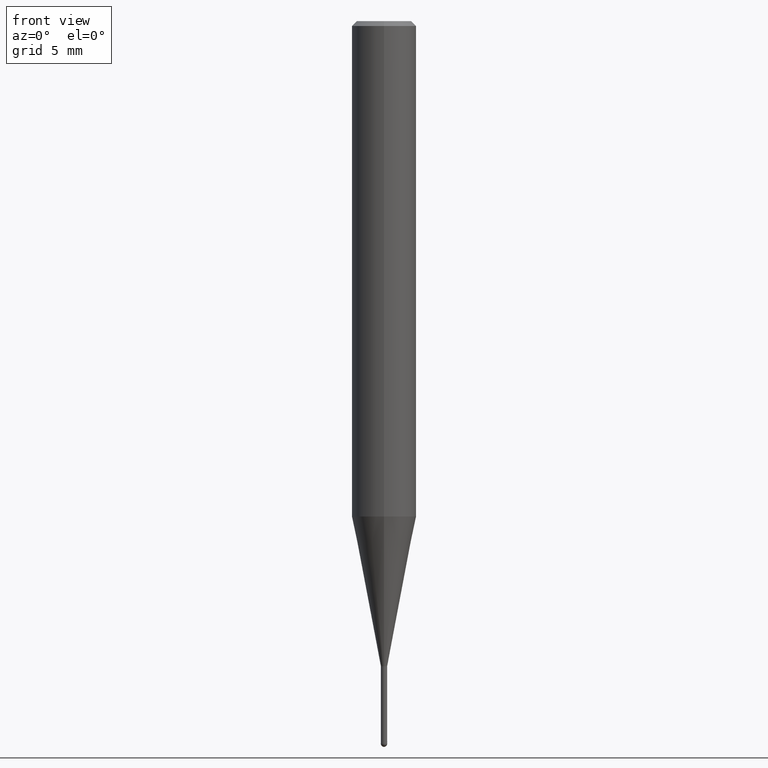
[diagram: clean part render]
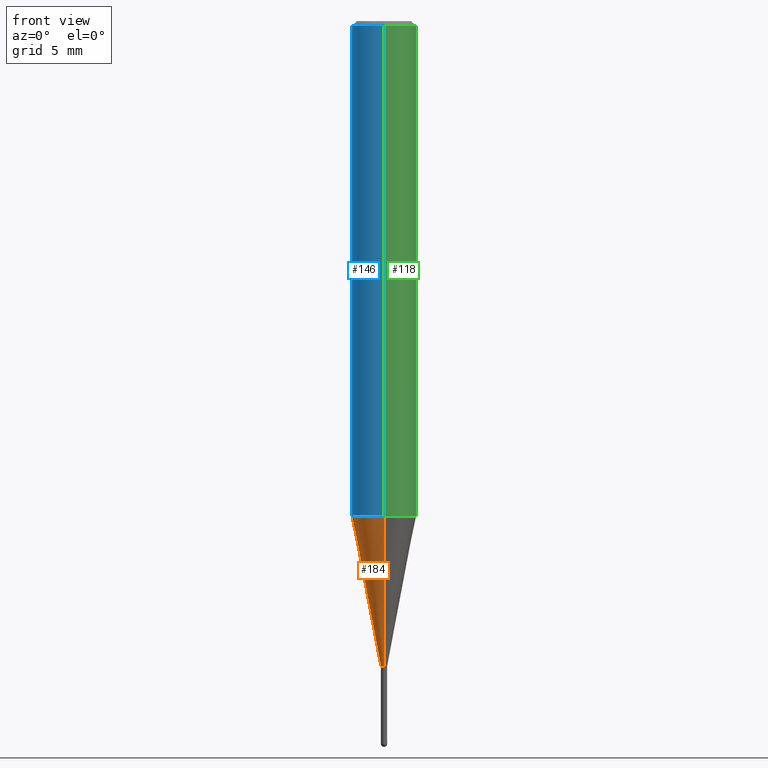
[diagram: same view with three faces highlighted in distinct colors, each labeled with its STEP entity id]
A machine part, front view with three faces highlighted in distinct colors.
Their STEP definitions:

[orange] entity #184 — the highlighted conical surface has half-angle 11 deg.
#154=EDGE_CURVE('',#174,#188,#302,.T.);
#168=EDGE_CURVE('',#174,#200,#317,.T.);
#170=EDGE_CURVE('',#194,#200,#319,.T.);
#174=VERTEX_POINT('',#324);
#184=ADVANCED_FACE('',(#336),#337,.T.);
#188=VERTEX_POINT('',#341);
#194=VERTEX_POINT('',#348);
#200=VERTEX_POINT('',#355);
#212=EDGE_CURVE('',#188,#194,#369,.T.);
#302=LINE('',#470,#471);
#317=CIRCLE('',#490,0.19495);
#319=LINE('',#493,#494);
#324=CARTESIAN_POINT('',(2.38737008677672E-017,-0.19495,-40.0));
#336=FACE_OUTER_BOUND('',#513,.T.);
#337=CONICAL_SURFACE('',#514,1.09745,0.191984604054908);
#341=CARTESIAN_POINT('',(2.44915147732706E-016,-1.99995,-30.714));
#348=CARTESIAN_POINT('',(0.0,1.99995,-30.714));
#355=CARTESIAN_POINT('',(0.0,0.19495,-40.0));
#369=CIRCLE('',#554,1.99995);
#470=CARTESIAN_POINT('',(1.34394424300237E-016,-1.09745,-35.357));
#471=VECTOR('',#641,1.0);
#490=AXIS2_PLACEMENT_3D('',#653,#654,#655);
#493=CARTESIAN_POINT('',(-1.34394424300237E-016,1.09745,-35.357));
#494=VECTOR('',#656,1.0);
#513=EDGE_LOOP('',(#681,#682,#683,#684));
#514=AXIS2_PLACEMENT_3D('',#685,#686,#687);
#554=AXIS2_PLACEMENT_3D('',#731,#732,#733);
#641=DIRECTION('',(2.33663968307108E-017,-0.190807411359389,0.981627491348082));
#653=CARTESIAN_POINT('',(0.0,0.0,-40.0));
#654=DIRECTION('',(0.0,0.0,-1.0));
#655=DIRECTION('',(0.0,1.0,0.0));
#656=DIRECTION('',(2.33663968307108E-017,-0.190807411359389,-0.981627491348082));
#681=ORIENTED_EDGE('',*,*,#170,.T.);
#682=ORIENTED_EDGE('',*,*,#168,.F.);
#683=ORIENTED_EDGE('',*,*,#154,.T.);
#684=ORIENTED_EDGE('',*,*,#212,.T.);
#685=CARTESIAN_POINT('',(0.0,0.0,-35.357));
#686=DIRECTION('',(-0.0,-0.0,1.0));
#687=DIRECTION('',(0.0,1.0,0.0));
#731=CARTESIAN_POINT('',(0.0,0.0,-30.714));
#732=DIRECTION('',(0.0,0.0,-1.0));
#733=DIRECTION('',(0.0,1.0,0.0));

[blue] entity #146 — the highlighted cylindrical surface (edge-blend (fillet) strip) has radius 2 mm, axis along (-0, -0, 1).
#104=VERTEX_POINT('',#245);
#110=VERTEX_POINT('',#252);
#112=VERTEX_POINT('',#254);
#126=EDGE_CURVE('',#162,#110,#271,.T.);
#132=EDGE_CURVE('',#110,#104,#277,.T.);
#146=ADVANCED_FACE('',(#293),#294,.T.);
#148=EDGE_CURVE('',#112,#104,#296,.T.);
#160=EDGE_CURVE('',#112,#162,#308,.T.);
#162=VERTEX_POINT('',#310);
#245=CARTESIAN_POINT('',(0.0,2.0,-30.714));
#252=CARTESIAN_POINT('',(0.0,2.0,-0.300000000000001));
#254=CARTESIAN_POINT('',(2.44921270764475E-016,-2.0,-30.714));
#271=CIRCLE('',#429,2.0);
#277=LINE('',#439,#440);
#293=FACE_OUTER_BOUND('',#458,.T.);
#294=CYLINDRICAL_SURFACE('',#459,2.0);
#296=CIRCLE('',#462,2.0);
#308=LINE('',#479,#480);
#310=CARTESIAN_POINT('',(2.44921270764475E-016,-2.0,-0.300000000000001));
#429=AXIS2_PLACEMENT_3D('',#600,#601,#602);
#439=CARTESIAN_POINT('',(-2.44921270764475E-016,2.0,-15.507));
#440=VECTOR('',#607,1.0);
#458=EDGE_LOOP('',(#628,#629,#630,#631));
#459=AXIS2_PLACEMENT_3D('',#632,#633,#634);
#462=AXIS2_PLACEMENT_3D('',#635,#636,#637);
#479=CARTESIAN_POINT('',(2.44921270764475E-016,-2.0,-15.507));
#480=VECTOR('',#644,1.0);
#600=CARTESIAN_POINT('',(0.0,0.0,-0.300000000000001));
#601=DIRECTION('',(0.0,0.0,-1.0));
#602=DIRECTION('',(0.0,1.0,0.0));
#607=DIRECTION('',(0.0,0.0,-1.0));
#628=ORIENTED_EDGE('',*,*,#132,.T.);
#629=ORIENTED_EDGE('',*,*,#148,.F.);
#630=ORIENTED_EDGE('',*,*,#160,.T.);
#631=ORIENTED_EDGE('',*,*,#126,.T.);
#632=CARTESIAN_POINT('',(0.0,0.0,-15.507));
#633=DIRECTION('',(-0.0,-0.0,1.0));
#634=DIRECTION('',(0.0,1.0,0.0));
#635=CARTESIAN_POINT('',(0.0,0.0,-30.714));
#636=DIRECTION('',(0.0,0.0,-1.0));
#637=DIRECTION('',(0.0,1.0,0.0));
#644=DIRECTION('',(-0.0,-0.0,1.0));

[green] entity #118 — the highlighted cylindrical surface (edge-blend (fillet) strip) has radius 2 mm, axis along (-0, -0, 1).
#104=VERTEX_POINT('',#245);
#110=VERTEX_POINT('',#252);
#112=VERTEX_POINT('',#254);
#118=ADVANCED_FACE('',(#260),#261,.T.);
#132=EDGE_CURVE('',#110,#104,#277,.T.);
#160=EDGE_CURVE('',#112,#162,#308,.T.);
#162=VERTEX_POINT('',#310);
#196=EDGE_CURVE('',#104,#112,#350,.T.);
#206=EDGE_CURVE('',#110,#162,#363,.T.);
#245=CARTESIAN_POINT('',(0.0,2.0,-30.714));
#252=CARTESIAN_POINT('',(0.0,2.0,-0.300000000000001));
#254=CARTESIAN_POINT('',(2.44921270764475E-016,-2.0,-30.714));
#260=FACE_OUTER_BOUND('',#415,.T.);
#261=CYLINDRICAL_SURFACE('',#416,2.0);
#277=LINE('',#439,#440);
#308=LINE('',#479,#480);
#310=CARTESIAN_POINT('',(2.44921270764475E-016,-2.0,-0.300000000000001));
#350=CIRCLE('',#530,2.0);
#363=CIRCLE('',#545,2.0);
#415=EDGE_LOOP('',(#578,#579,#580,#581));
#416=AXIS2_PLACEMENT_3D('',#582,#583,#584);
#439=CARTESIAN_POINT('',(-2.44921270764475E-016,2.0,-15.507));
#440=VECTOR('',#607,1.0);
#479=CARTESIAN_POINT('',(2.44921270764475E-016,-2.0,-15.507));
#480=VECTOR('',#644,1.0);
#530=AXIS2_PLACEMENT_3D('',#702,#703,#704);
#545=AXIS2_PLACEMENT_3D('',#722,#723,#724);
#578=ORIENTED_EDGE('',*,*,#132,.F.);
#579=ORIENTED_EDGE('',*,*,#206,.T.);
#580=ORIENTED_EDGE('',*,*,#160,.F.);
#581=ORIENTED_EDGE('',*,*,#196,.F.);
#582=CARTESIAN_POINT('',(0.0,0.0,-15.507));
#583=DIRECTION('',(-0.0,-0.0,1.0));
#584=DIRECTION('',(0.0,1.0,0.0));
#607=DIRECTION('',(0.0,0.0,-1.0));
#644=DIRECTION('',(-0.0,-0.0,1.0));
#702=CARTESIAN_POINT('',(0.0,0.0,-30.714));
#703=DIRECTION('',(0.0,0.0,-1.0));
#704=DIRECTION('',(0.0,1.0,0.0));
#722=CARTESIAN_POINT('',(0.0,0.0,-0.300000000000001));
#723=DIRECTION('',(0.0,0.0,-1.0));
#724=DIRECTION('',(0.0,1.0,0.0));